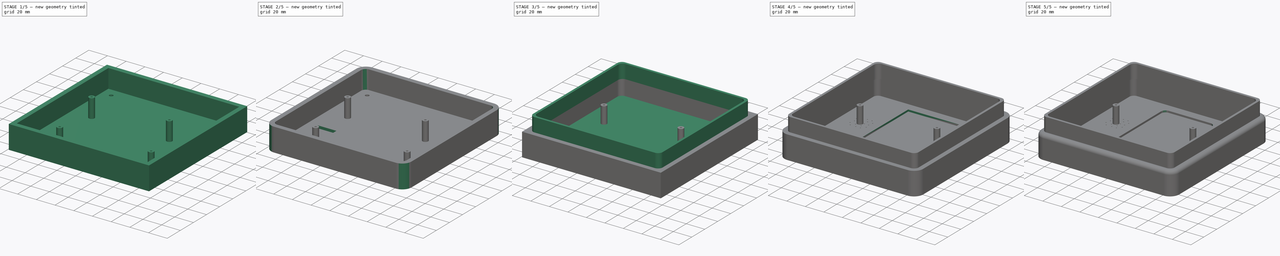
[diagram: build sequence overview — one tinted view per stage of 5, left to right]
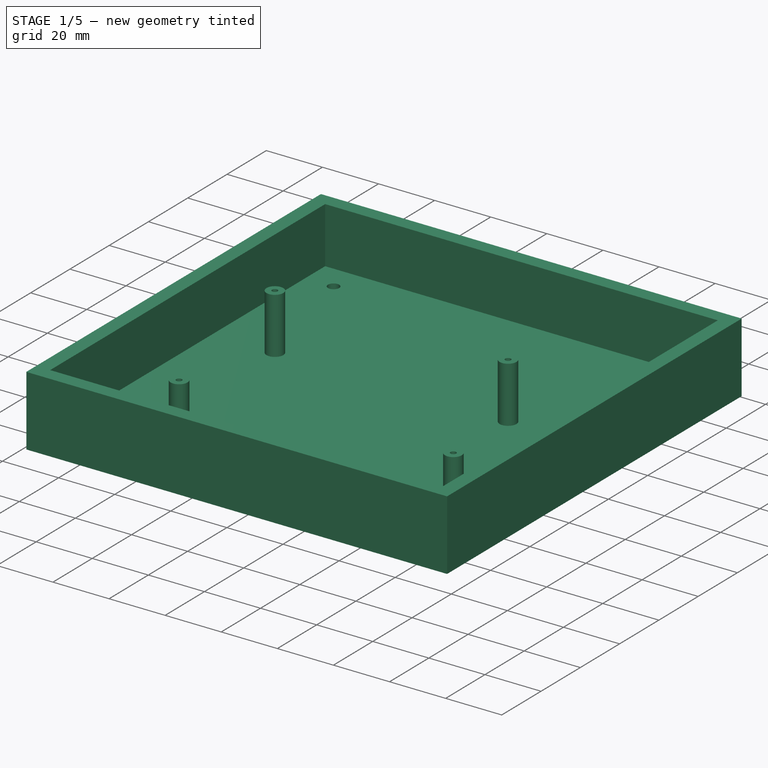
[diagram: stage 1 of 5 — iso view after this stage's code; geometry added in this stage tinted green]
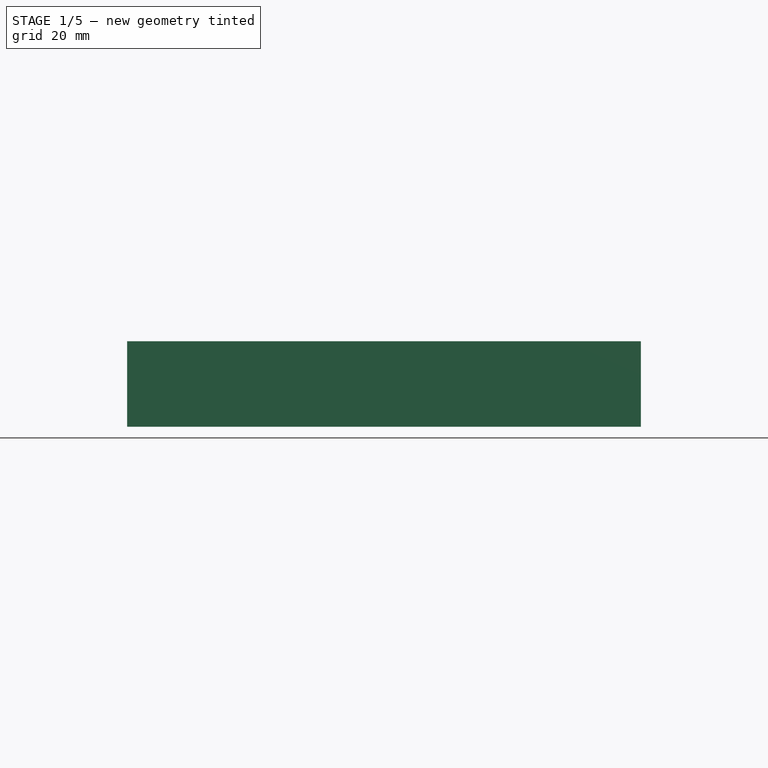
[diagram: stage 1 of 5 — front view after this stage's code; geometry added in this stage tinted green]
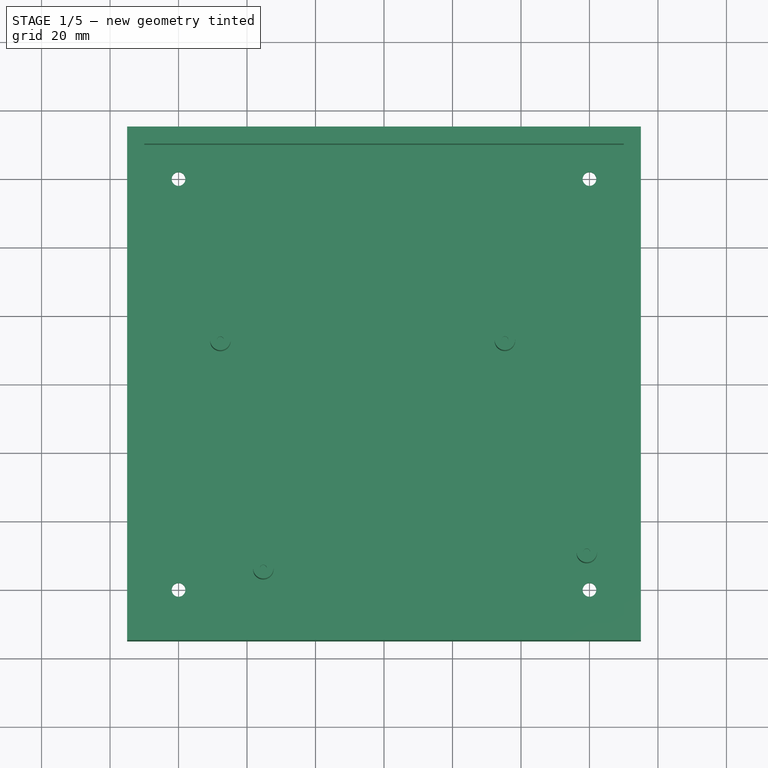
[diagram: stage 1 of 5 — top view after this stage's code; geometry added in this stage tinted green]
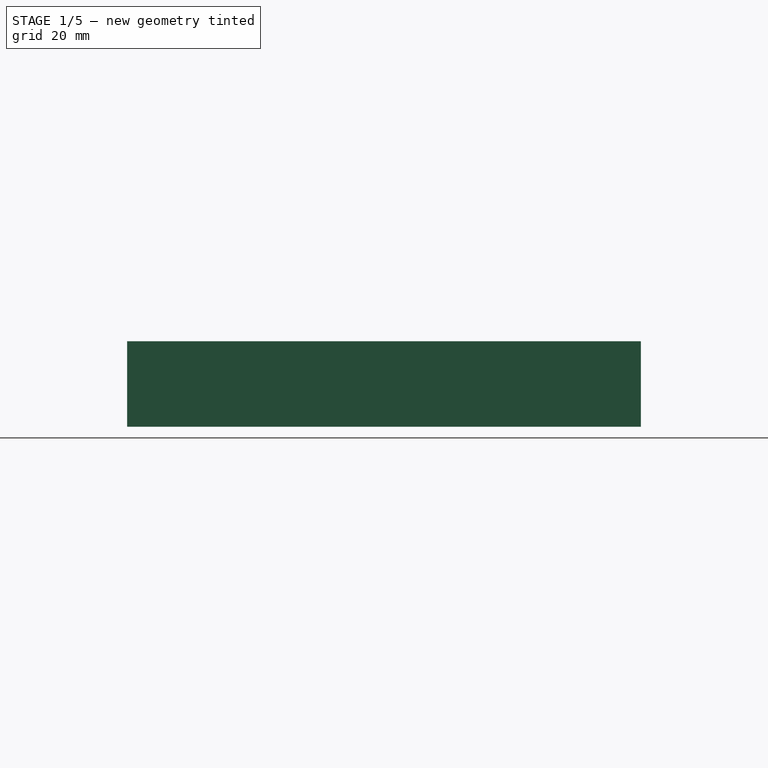
[diagram: stage 1 of 5 — right view after this stage's code; geometry added in this stage tinted green]
FCSTD DOCUMENT  (FreeCAD 2024.2R37240 (Git))
Label: 3d model
License: All rights reserved
LicenseURL: https://en.wikipedia.org/wiki/All_rights_reserved
objects: PartDesign::Fillet×11, Sketcher::SketchObject×10, PartDesign::Pocket×6, PartDesign::Pad×3, PartDesign::Body×2, App::VRMLObject×1, PartDesign::Hole×1
note: 54 computed .brp shape members not serialized (recipe doc carries the construction recipe); baked Part::Feature solids carry a one-line shape summary decoded from their .brp

FEATURE [App::VRMLObject] smart_lock  label="smart lock"
FEATURE [Sketcher::SketchObject] Sketch
  AttachmentSupport = -> [XY_Plane]
  FullyConstrained = true
  MapMode = 5
  sketch-geometry (4):
    g0: LineSegment StartX=-75 StartY=75 StartZ=0 EndX=-75 EndY=-75 EndZ=0
    g1: LineSegment StartX=-75 StartY=-75 StartZ=0 EndX=75 EndY=-75 EndZ=0
    g2: LineSegment StartX=75 StartY=-75 StartZ=0 EndX=75 EndY=75 EndZ=0
    g3: LineSegment StartX=75 StartY=75 StartZ=0 EndX=-75 EndY=75 EndZ=0
  constraints (13):
    c: Coincident(g0,g1)
    c: Coincident(g1,g2)
    c: Coincident(g2,g3)
    c: Coincident(g3,g0)
    c: Vertical(g0)
    c: Vertical(g2)
    c: Horizontal(g1)
    c: Horizontal(g3)
    c: Distance(g0,g2) = 150
    c: Distance(g1,g3) = 150
    c: DistanceY(g-1,g2) = 75
    c: Distance(g-1,g-1) = 0
    c: DistanceX(g-1,g1) = 75
FEATURE [PartDesign::Pad] Pad
  Direction = (0,0,1)
  Length = 25
  Length2 = 10
  Profile = -> Sketch
  ReferenceAxis = -> Sketch [N_Axis]
  Refine = true
  Reversed = true
  Suppressed = false
  Type = 0
FEATURE [Sketcher::SketchObject] Sketch003
  AttachmentSupport = -> [XY_Plane]
  FullyConstrained = false
  MapMode = 5
  sketch-geometry (4):
    g0: Circle CenterX=-47.7799 CenterY=12.6774 CenterZ=0 NormalX=0 NormalY=0 NormalZ=1 AngleXU=0 Radius=1
    g1: Circle CenterX=35.3114 CenterY=12.7213 CenterZ=0 NormalX=0 NormalY=0 NormalZ=1 AngleXU=0 Radius=1
    g2: Circle CenterX=59.2229 CenterY=-49.2691 CenterZ=0 NormalX=0 NormalY=0 NormalZ=1 AngleXU=0 Radius=1
    g3: Circle CenterX=-35.2486 CenterY=-54 CenterZ=0 NormalX=0 NormalY=0 NormalZ=1 AngleXU=0 Radius=1
  constraints (4):
    c: Radius(g0) = 1
    c: Radius(g1) = 1
    c: Radius(g2) = 1
    c: Radius(g3) = 1
FEATURE [PartDesign::Pocket] Pocket001
  BaseFeature = -> Pad
  Direction = (0,0,-1)
  Length = 5
  Length2 = 5
  Profile = -> Sketch003
  ReferenceAxis = -> Sketch003 [N_Axis]
  Refine = true
  Suppressed = false
  Type = 0
FEATURE [Sketcher::SketchObject] Sketch004
  AttachmentSupport = -> [XY_Plane]
  FullyConstrained = false
  MapMode = 5
  sketch-geometry (4):
    g0: Circle CenterX=60 CenterY=-60 CenterZ=0 NormalX=0 NormalY=0 NormalZ=1 AngleXU=0 Radius=2.5
    g1: Circle CenterX=-60 CenterY=60 CenterZ=0 NormalX=0 NormalY=0 NormalZ=1 AngleXU=0 Radius=2.5
    g2: Circle CenterX=-60 CenterY=-60 CenterZ=0 NormalX=0 NormalY=0 NormalZ=1 AngleXU=0 Radius=2.5
    g3: Circle CenterX=60 CenterY=60 CenterZ=0 NormalX=0 NormalY=0 NormalZ=1 AngleXU=0 Radius=2.5
  constraints (4):
    c: Radius(g0) = 2.5
    c: Radius(g1) = 2.5
    c: Radius(g2) = 2.5
    c: Radius(g3) = 2.5
FEATURE [PartDesign::Hole] Hole
  BaseFeature = -> Pocket001
  CustomThreadClearance = 0
  Depth = 25
  DepthType = 0
  Diameter = 4
  DrillForDepth = false
  DrillPoint = 1
  DrillPointAngle = 118
  HoleCutCountersinkAngle = 90
  HoleCutCustomValues = false
  HoleCutDepth = 0
  HoleCutDiameter = 6.1
  HoleCutType = 0
  ModelThread = false
  Profile = -> Sketch004
  Refine = true
  Suppressed = false
  Tapered = false
  TaperedAngle = 90
  ThreadClass = 0
  ThreadDepth = 25
  ThreadDepthType = 0
  ThreadDirection = 0
  ThreadFit = 0
  ThreadSize = 0
  ThreadType = 0
  Threaded = false
  UseCustomThreadClearance = false
FEATURE [Sketcher::SketchObject] Sketch005
  AttachmentSupport = -> [Hole]
  FullyConstrained = false
  MapMode = 5
  Placement = pos=(0,0,-5) rot=(0,0,1;0rad)
  sketch-geometry (4):
    g0: LineSegment StartX=-60 StartY=-15.5439 StartZ=0 EndX=-60 EndY=-20.5439 EndZ=0
    g1: LineSegment StartX=-60 StartY=-20.5439 StartZ=0 EndX=-40 EndY=-20.5439 EndZ=0
    g2: LineSegment StartX=-40 StartY=-20.5439 StartZ=0 EndX=-40 EndY=-15.5439 EndZ=0
    g3: LineSegment StartX=-40 StartY=-15.5439 StartZ=0 EndX=-60 EndY=-15.5439 EndZ=0
  constraints (10):
    c: Coincident(g0,g1)
    c: Coincident(g1,g2)
    c: Coincident(g2,g3)
    c: Coincident(g3,g0)
    c: Vertical(g0)
    c: Vertical(g2)
    c: Horizontal(g1)
    c: Horizontal(g3)
    c: Distance(g0,g2) = 20
    c: Distance(g1,g3) = 5
FEATURE [Sketcher::SketchObject] Sketch001
  AttachmentSupport = -> [XY_Plane]
  ExternalGeometry = -> [Pad]
  FullyConstrained = false
  MapMode = 5
  sketch-geometry (8):
    g0: LineSegment StartX=-70 StartY=70 StartZ=0 EndX=-70 EndY=-70 EndZ=0
    g1: LineSegment StartX=-70 StartY=-70 StartZ=0 EndX=70 EndY=-70 EndZ=0
    g2: LineSegment StartX=70 StartY=-70 StartZ=0 EndX=70 EndY=70 EndZ=0
    g3: LineSegment StartX=70 StartY=70 StartZ=0 EndX=-70 EndY=70 EndZ=0
    g4: Circle CenterX=-47.7799 CenterY=12.6774 CenterZ=0 NormalX=0 NormalY=0 NormalZ=1 AngleXU=0 Radius=3
    g5: Circle CenterX=35.3114 CenterY=12.7213 CenterZ=0 NormalX=0 NormalY=0 NormalZ=1 AngleXU=0 Radius=3
    g6: Circle CenterX=59.2229 CenterY=-49.2691 CenterZ=0 NormalX=0 NormalY=0 NormalZ=1 AngleXU=0 Radius=3
    g7: Circle CenterX=-35.2486 CenterY=-54 CenterZ=0 NormalX=0 NormalY=0 NormalZ=1 AngleXU=0 Radius=3
  constraints (16):
    c: Coincident(g0,g1)
    c: Coincident(g1,g2)
    c: Coincident(g2,g3)
    c: Coincident(g3,g0)
    c: Vertical(g0)
    c: Vertical(g2)
    c: Horizontal(g1)
    c: Horizontal(g3)
    c: Distance(g0,g2) = 140
    c: Distance(g1,g3) = 140
    c: DistanceY(g2,g-3) = 5
    c: DistanceX(g-4,g0) = 5
    c: Radius(g4) = 3
    c: Radius(g5) = 3
    c: Radius(g6) = 3
    c: Radius(g7) = 3
FEATURE [PartDesign::Pocket] Pocket
  BaseFeature = -> Hole
  Direction = (0,0,-1)
  Length = 20
  Length2 = 5
  Profile = -> Sketch001
  ReferenceAxis = -> Sketch001 [N_Axis]
  Refine = true
  Suppressed = false
  Type = 0
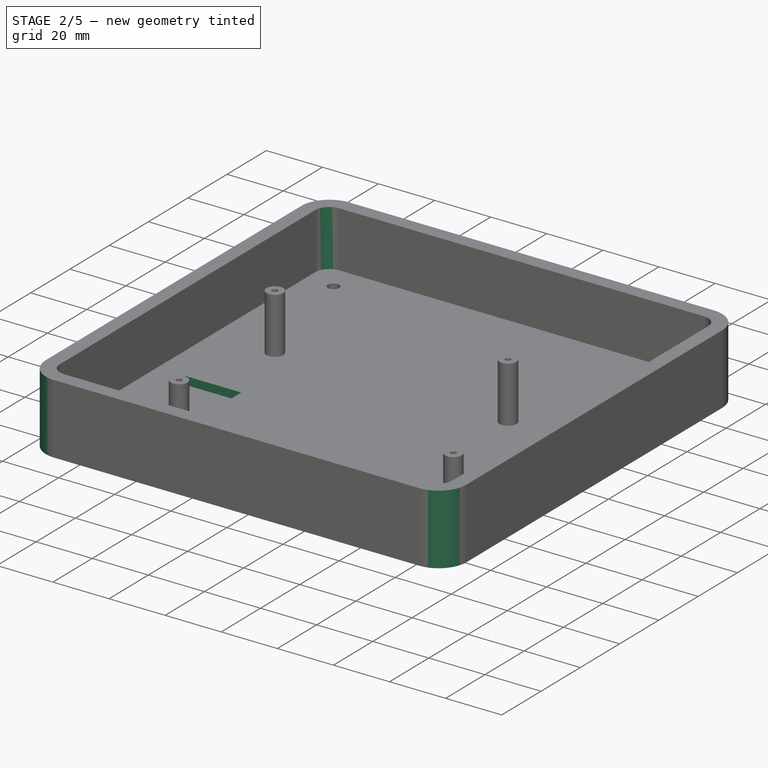
[diagram: stage 2 of 5 — iso view after this stage's code; geometry added in this stage tinted green]
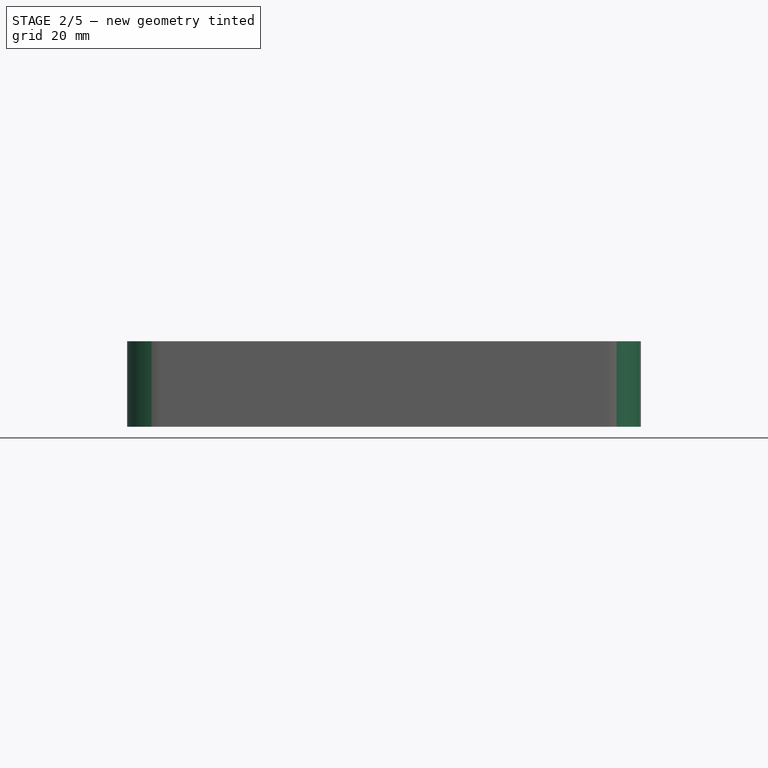
[diagram: stage 2 of 5 — front view after this stage's code; geometry added in this stage tinted green]
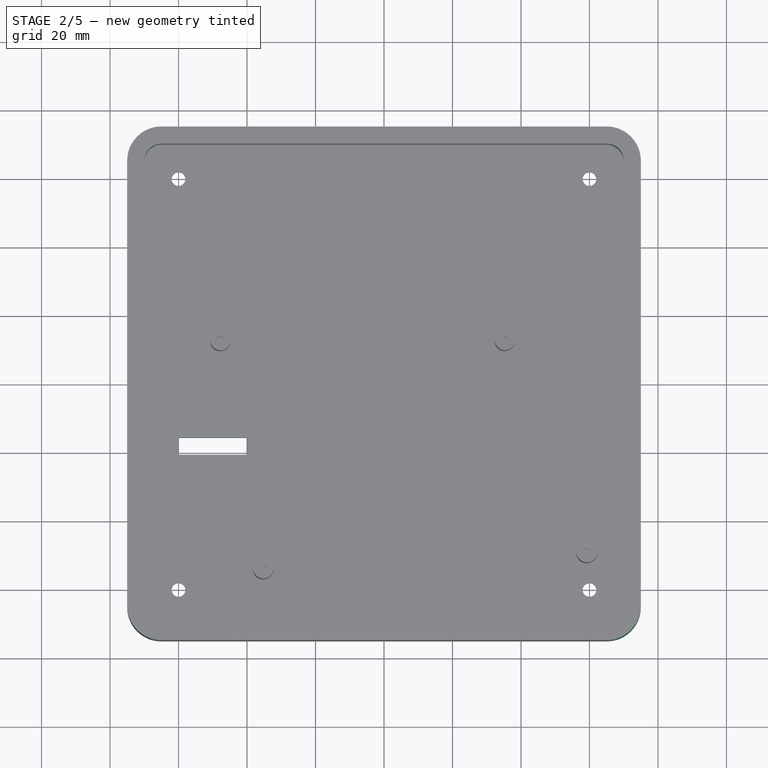
[diagram: stage 2 of 5 — top view after this stage's code; geometry added in this stage tinted green]
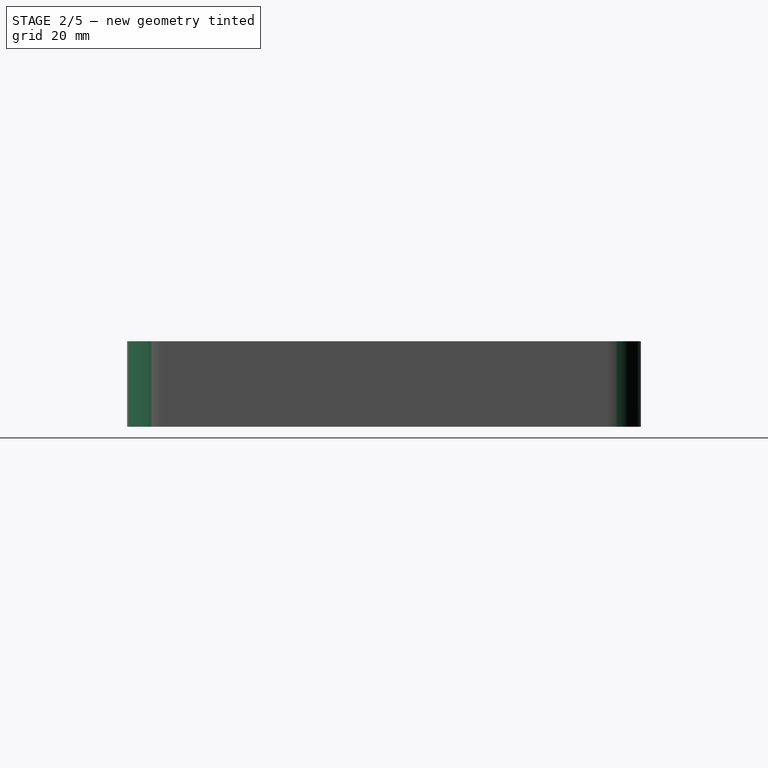
[diagram: stage 2 of 5 — right view after this stage's code; geometry added in this stage tinted green]
FEATURE [PartDesign::Pocket] Pocket005
  BaseFeature = -> Pocket
  Direction = (0,0,-1)
  Length = 22
  Length2 = 5
  Profile = -> Sketch005
  ReferenceAxis = -> Sketch005 [N_Axis]
  Refine = true
  Suppressed = false
  Type = 0
FEATURE [PartDesign::Fillet] Fillet
  Base = -> Pocket005 [Edge30,Edge25,Edge28]
  BaseFeature = -> Pocket005
  Radius = 5
  Refine = true
  SupportTransform = false
  Suppressed = false
  UseAllEdges = false
FEATURE [PartDesign::Fillet] Fillet011
  Base = -> Fillet [Edge29,Edge26,Edge31,Edge27]
  BaseFeature = -> Fillet
  Radius = 10
  Refine = true
  SupportTransform = false
  Suppressed = false
  UseAllEdges = false
FEATURE [PartDesign::Fillet] Fillet012
  Base = -> Fillet011 [Edge33]
  BaseFeature = -> Fillet011
  Radius = 5
  Refine = true
  SupportTransform = false
  Suppressed = false
  UseAllEdges = false
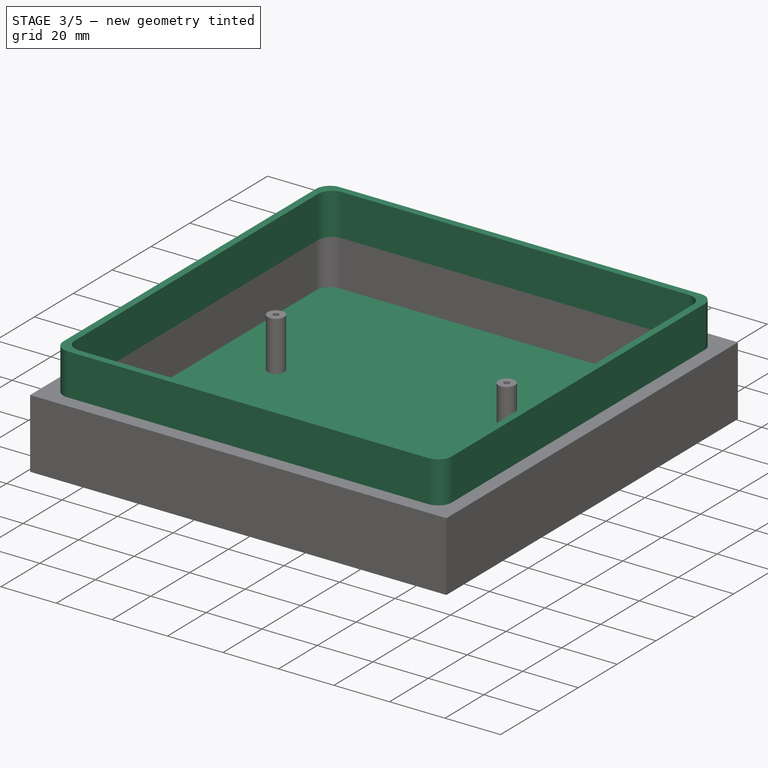
[diagram: stage 3 of 5 — iso view after this stage's code; geometry added in this stage tinted green]
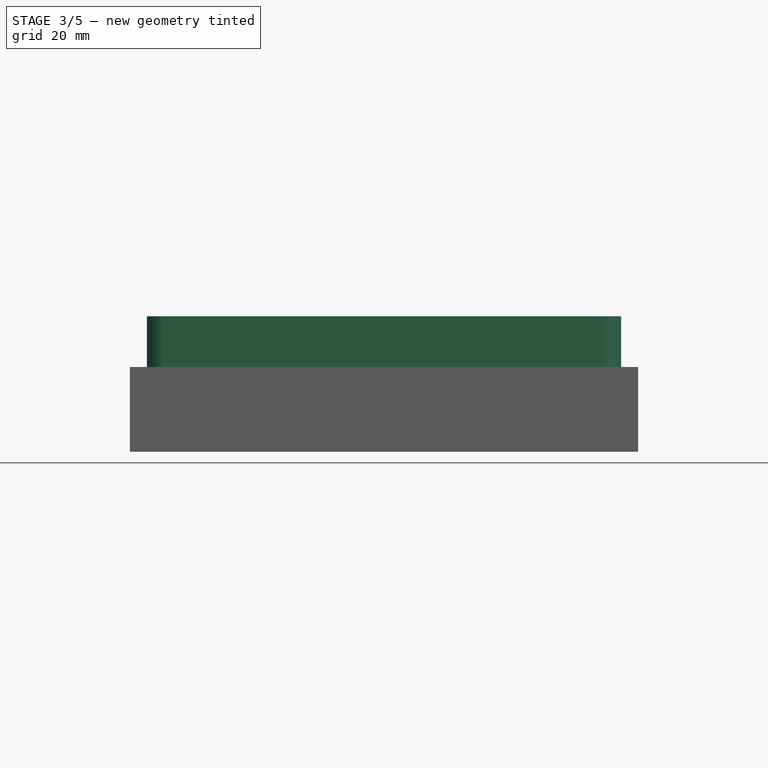
[diagram: stage 3 of 5 — front view after this stage's code; geometry added in this stage tinted green]
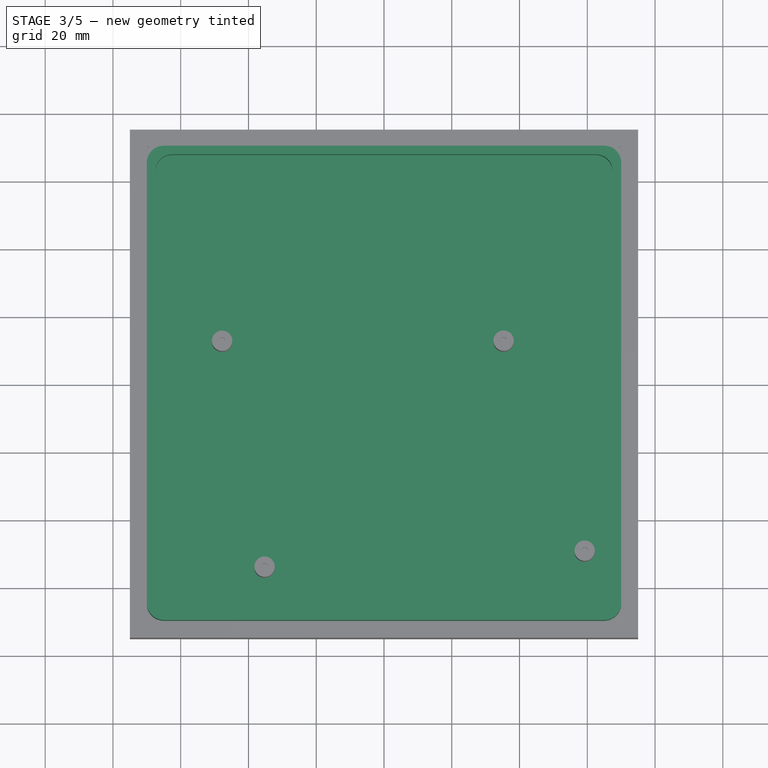
[diagram: stage 3 of 5 — top view after this stage's code; geometry added in this stage tinted green]
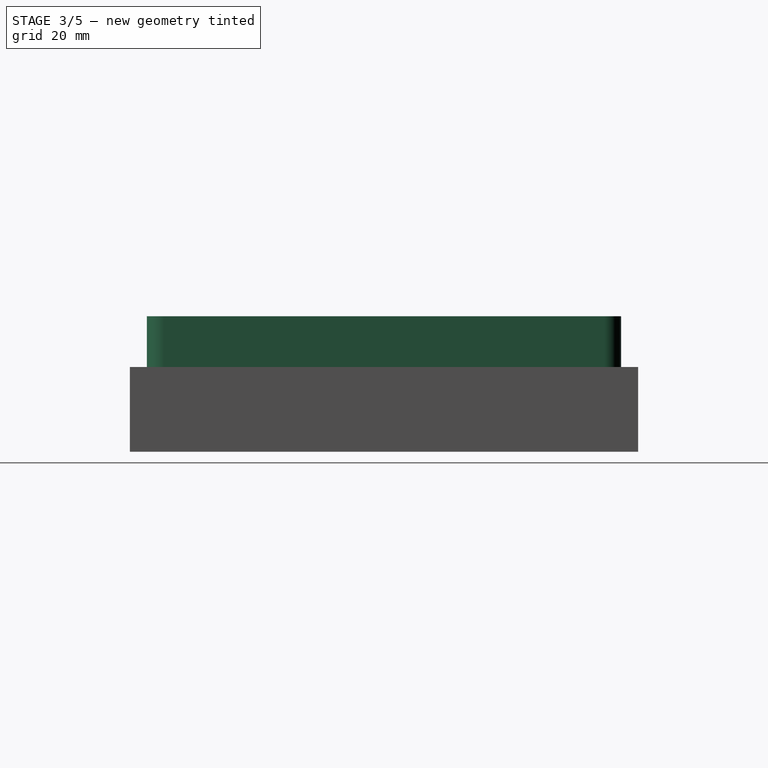
[diagram: stage 3 of 5 — right view after this stage's code; geometry added in this stage tinted green]
FEATURE [Sketcher::SketchObject] Sketch002
  AttachmentSupport = -> [XY_Plane001]
  FullyConstrained = true
  MapMode = 5
  sketch-geometry (4):
    g0: LineSegment StartX=-75 StartY=75 StartZ=0 EndX=-75 EndY=-75 EndZ=0
    g1: LineSegment StartX=-75 StartY=-75 StartZ=0 EndX=75 EndY=-75 EndZ=0
    g2: LineSegment StartX=75 StartY=-75 StartZ=0 EndX=75 EndY=75 EndZ=0
    g3: LineSegment StartX=75 StartY=75 StartZ=0 EndX=-75 EndY=75 EndZ=0
  constraints (13):
    c: Coincident(g0,g1)
    c: Coincident(g1,g2)
    c: Coincident(g2,g3)
    c: Coincident(g3,g0)
    c: Vertical(g0)
    c: Vertical(g2)
    c: Horizontal(g1)
    c: Horizontal(g3)
    c: Distance(g0,g2) = 150
    c: Distance(g1,g3) = 150
    c: DistanceY(g-1,g2) = 75
    c: Distance(g-1,g-1) = 0
    c: DistanceX(g-1,g1) = 75
FEATURE [PartDesign::Pad] Pad001
  Direction = (0,0,1)
  Length = 25
  Length2 = 10
  Profile = -> Sketch002
  ReferenceAxis = -> Sketch002 [N_Axis]
  Refine = true
  Reversed = true
  Suppressed = false
  Type = 0
FEATURE [Sketcher::SketchObject] Sketch006
  AttachmentSupport = -> [XY_Plane001]
  ExternalGeometry = -> [Pad001]
  FullyConstrained = true
  MapMode = 5
  sketch-geometry (4):
    g0: LineSegment StartX=-70 StartY=70 StartZ=0 EndX=-70 EndY=-70 EndZ=0
    g1: LineSegment StartX=-70 StartY=-70 StartZ=0 EndX=70 EndY=-70 EndZ=0
    g2: LineSegment StartX=70 StartY=-70 StartZ=0 EndX=70 EndY=70 EndZ=0
    g3: LineSegment StartX=70 StartY=70 StartZ=0 EndX=-70 EndY=70 EndZ=0
  constraints (12):
    c: Coincident(g0,g1)
    c: Coincident(g1,g2)
    c: Coincident(g2,g3)
    c: Coincident(g3,g0)
    c: Vertical(g0)
    c: Vertical(g2)
    c: Horizontal(g1)
    c: Horizontal(g3)
    c: Distance(g0,g2) = 140
    c: Distance(g1,g3) = 140
    c: DistanceY(g2,g-3) = 5
    c: DistanceX(g-4,g0) = 5
FEATURE [PartDesign::Pocket] Pocket003
  BaseFeature = -> Pad001
  Direction = (0,0,-1)
  Length = 18
  Length2 = 5
  Profile = -> Sketch006
  ReferenceAxis = -> Sketch006 [N_Axis]
  Refine = true
  Suppressed = false
  Type = 0
FEATURE [PartDesign::Fillet] Fillet013
  Base = -> Fillet012 [Edge9]
  BaseFeature = -> Fillet012
  Radius = 4
  Refine = true
  SupportTransform = false
  Suppressed = false
  UseAllEdges = false
FEATURE [PartDesign::Body] Body001
  Group = -> [Sketch002,Pad001,Sketch006,Pocket003,Sketch007,Pocket004,Fillet005,Fillet006,Fillet007,Fillet008,Fillet009,Fillet010,Fillet014]
  Origin = -> Origin001
  Placement = pos=(0,1e-15,-11) rot=(1,0,0;3.14159rad)
  Tip = -> Fillet014
FEATURE [Sketcher::SketchObject] Sketch008
  AttachmentSupport = -> [XY_Plane]
  FullyConstrained = false
  MapMode = 5
  sketch-geometry (10):
    g0: LineSegment StartX=-70 StartY=65 StartZ=0 EndX=-70 EndY=-65 EndZ=0
    g1: LineSegment StartX=-65 StartY=-70 StartZ=0 EndX=65 EndY=-70 EndZ=0
    g2: LineSegment StartX=70 StartY=-65 StartZ=0 EndX=70 EndY=65 EndZ=0
    g3: LineSegment StartX=65 StartY=70 StartZ=0 EndX=-65 EndY=70 EndZ=0
    g4: ArcOfCircle CenterX=-65 CenterY=65 CenterZ=0 NormalX=0 NormalY=0 NormalZ=1 AngleXU=0 Radius=5 StartAngle=1.5708 EndAngle=3.14159
    g5: ArcOfCircle CenterX=-65 CenterY=-65 CenterZ=0 NormalX=0 NormalY=0 NormalZ=1 AngleXU=0 Radius=5 StartAngle=3.14159 EndAngle=4.71239
    g6: ArcOfCircle CenterX=65 CenterY=-65 CenterZ=0 NormalX=0 NormalY=0 NormalZ=1 AngleXU=0 Radius=5 StartAngle=4.71239 EndAngle=6.28319
    g7: ArcOfCircle CenterX=65 CenterY=65 CenterZ=0 NormalX=0 NormalY=0 NormalZ=1 AngleXU=0 Radius=5 StartAngle=0 EndAngle=1.5708
    g8: GeomPoint X=-70 Y=70 Z=0
    g9: GeomPoint X=70 Y=-70 Z=0
  constraints (22):
    c: Tangent(g0,g4) = -1.5708
    c: Tangent(g0,g5) = -1.5708
    c: Tangent(g1,g5) = -1.5708
    c: Tangent(g1,g6) = -1.5708
    c: Tangent(g2,g6) = -1.5708
    c: Tangent(g2,g7) = -1.5708
    c: Tangent(g3,g7) = -1.5708
    c: Tangent(g3,g4) = -1.5708
    c: Vertical(g0)
    c: Vertical(g2)
    c: Horizontal(g1)
    c: Horizontal(g3)
    c: Equal(g4,g5)
    c: Equal(g5,g6)
    c: Equal(g6,g7)
    c: PointOnObject(g8,g0)
    c: PointOnObject(g8,g3)
    c: PointOnObject(g9,g1)
    c: PointOnObject(g9,g2)
    c: Distance(g0,g2) = 140
    c: Distance(g1,g3) = 140
    c: Radius(g5) = 5
FEATURE [PartDesign::Pad] Pad002
  BaseFeature = -> Fillet013
  Direction = (0,0,1)
  Length = 15
  Length2 = 10
  Profile = -> Sketch008
  ReferenceAxis = -> Sketch008 [N_Axis]
  Refine = true
  Suppressed = false
  Type = 0
FEATURE [Sketcher::SketchObject] Sketch009
  AttachmentSupport = -> [Pad002]
  FullyConstrained = false
  MapMode = 5
  Placement = pos=(0,0,15) rot=(0,0,1;0rad)
  sketch-geometry (10):
    g0: LineSegment StartX=-67.4986 StartY=62.4757 StartZ=0 EndX=-67.4986 EndY=-62.5243 EndZ=0
    g1: LineSegment StartX=-62.4986 StartY=-67.5243 StartZ=0 EndX=62.5014 EndY=-67.5243 EndZ=0
    g2: LineSegment StartX=67.5014 StartY=-62.5243 StartZ=0 EndX=67.5014 EndY=62.4757 EndZ=0
    g3: LineSegment StartX=62.5014 StartY=67.4757 StartZ=0 EndX=-62.4986 EndY=67.4757 EndZ=0
    g4: ArcOfCircle CenterX=-62.4986 CenterY=62.4757 CenterZ=0 NormalX=0 NormalY=0 NormalZ=1 AngleXU=0 Radius=5 StartAngle=1.5708 EndAngle=3.14159
    g5: ArcOfCircle CenterX=-62.4986 CenterY=-62.5243 CenterZ=0 NormalX=0 NormalY=0 NormalZ=1 AngleXU=0 Radius=5 StartAngle=3.14159 EndAngle=4.71239
    g6: ArcOfCircle CenterX=62.5014 CenterY=-62.5243 CenterZ=0 NormalX=0 NormalY=0 NormalZ=1 AngleXU=0 Radius=5 StartAngle=4.71239 EndAngle=6.28319
    g7: ArcOfCircle CenterX=62.5014 CenterY=62.4757 CenterZ=0 NormalX=0 NormalY=0 NormalZ=1 AngleXU=0 Radius=5 StartAngle=0 EndAngle=1.5708
    g8: GeomPoint X=-67.4986 Y=67.4757 Z=0
    g9: GeomPoint X=67.5014 Y=-67.5243 Z=0
  constraints (22):
    c: Tangent(g0,g4) = -1.5708
    c: Tangent(g0,g5) = -1.5708
    c: Tangent(g1,g5) = -1.5708
    c: Tangent(g1,g6) = -1.5708
    c: Tangent(g2,g6) = -1.5708
    c: Tangent(g2,g7) = -1.5708
    c: Tangent(g3,g7) = -1.5708
    c: Tangent(g3,g4) = -1.5708
    c: Vertical(g0)
    c: Vertical(g2)
    c: Horizontal(g1)
    c: Horizontal(g3)
    c: Equal(g4,g5)
    c: Equal(g5,g6)
    c: Equal(g6,g7)
    c: PointOnObject(g8,g0)
    c: PointOnObject(g8,g3)
    c: PointOnObject(g9,g1)
    c: PointOnObject(g9,g2)
    c: Distance(g0,g2) = 135
    c: Distance(g1,g3) = 135
    c: Radius(g5) = 5
FEATURE [PartDesign::Pocket] Pocket006
  BaseFeature = -> Pad002
  Direction = (0,0,-1)
  Length = 15
  Length2 = 5
  Profile = -> Sketch009
  ReferenceAxis = -> Sketch009 [N_Axis]
  Refine = true
  Suppressed = false
  Type = 0
FEATURE [PartDesign::Body] Body
  Group = -> [Sketch,Pad,Sketch001,Sketch003,Pocket001,Sketch004,Hole,Sketch005,Pocket,Pocket005,Fillet,Fillet011,Fillet012,Fillet013,Sketch008,Pad002,Sketch009,Pocket006]
  Origin = -> Origin
  Placement = pos=(0,0,-20) rot=(0,0,1;0rad)
  Tip = -> Pocket006
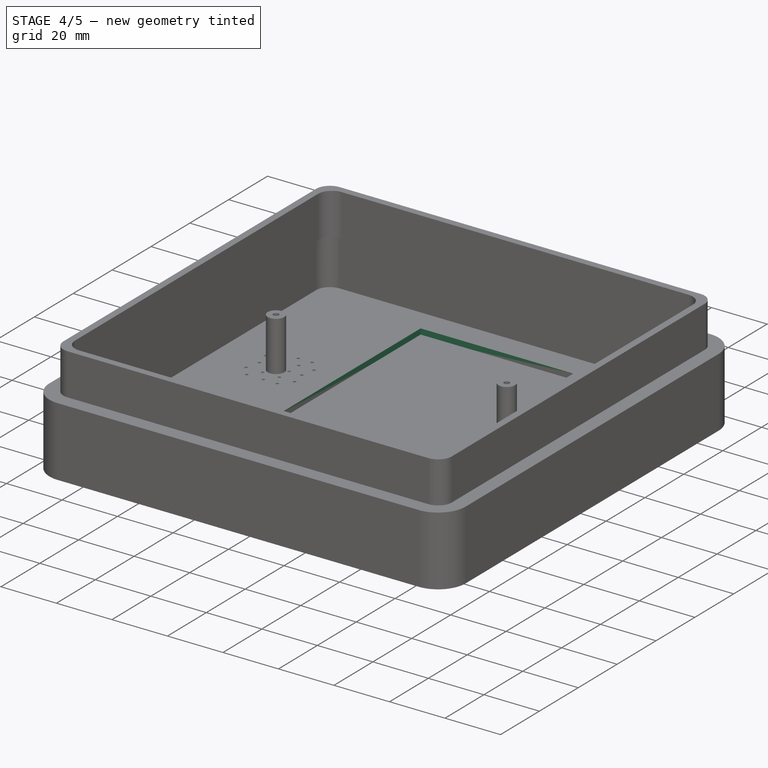
[diagram: stage 4 of 5 — iso view after this stage's code; geometry added in this stage tinted green]
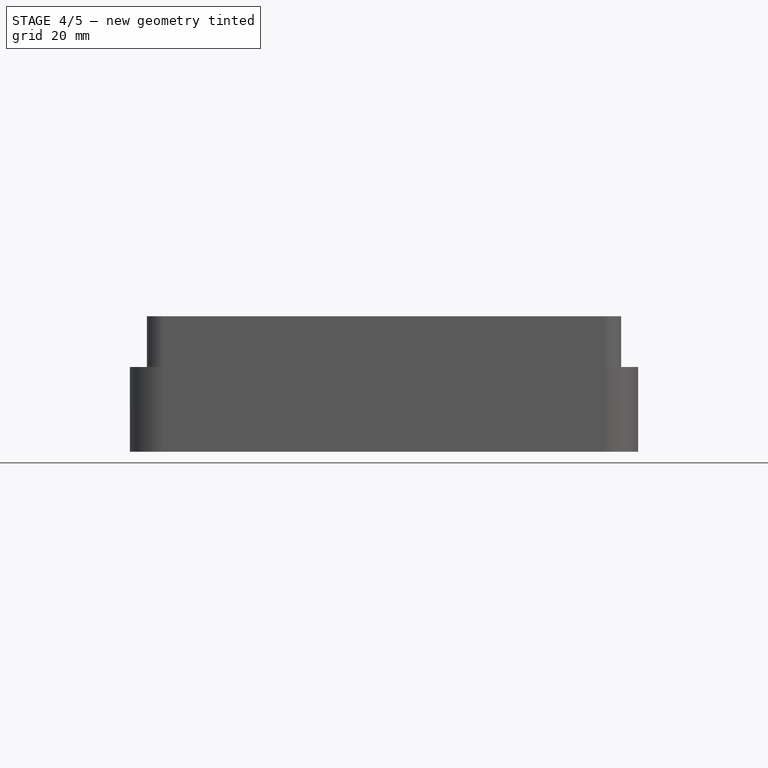
[diagram: stage 4 of 5 — front view after this stage's code; geometry added in this stage tinted green]
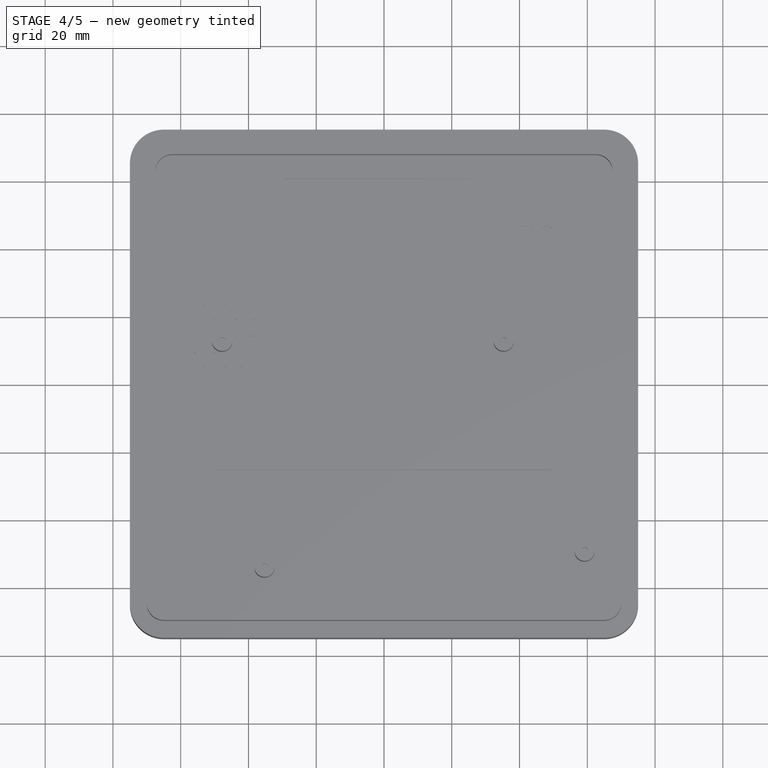
[diagram: stage 4 of 5 — top view after this stage's code; geometry added in this stage tinted green]
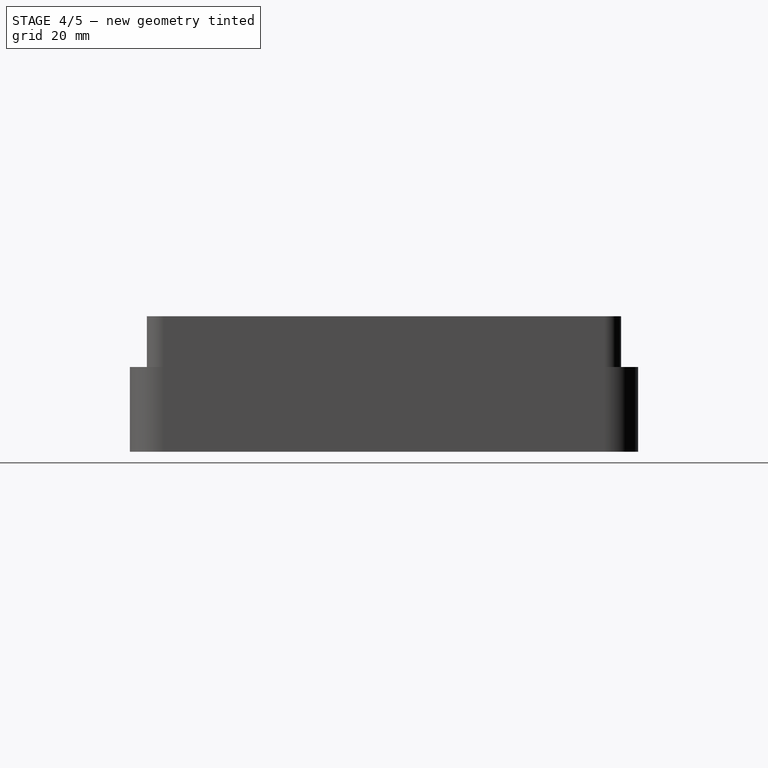
[diagram: stage 4 of 5 — right view after this stage's code; geometry added in this stage tinted green]
FEATURE [Sketcher::SketchObject] Sketch007
  AttachmentSupport = -> [XY_Plane001]
  FullyConstrained = false
  MapMode = 5
  sketch-geometry (28):
    g0: LineSegment StartX=-50.066 StartY=-50 StartZ=0 EndX=49.434 EndY=-50 EndZ=0
    g1: LineSegment StartX=49.434 StartY=-50 StartZ=0 EndX=49.434 EndY=-25 EndZ=0
    g2: LineSegment StartX=49.434 StartY=-25 StartZ=0 EndX=-50.066 EndY=-25 EndZ=0
    g3: LineSegment StartX=-50.066 StartY=-25 StartZ=0 EndX=-50.066 EndY=-50 EndZ=0
    g4: Circle CenterX=47.9816 CenterY=44.2619 CenterZ=0 NormalX=0 NormalY=0 NormalZ=1 AngleXU=0 Radius=2.5
    g5: Circle CenterX=41.5152 CenterY=44.357 CenterZ=0 NormalX=0 NormalY=0 NormalZ=1 AngleXU=0 Radius=2.5
    g6: Circle CenterX=-50 CenterY=14 CenterZ=0 NormalX=0 NormalY=0 NormalZ=1 AngleXU=0 Radius=0.5
    g7: Circle CenterX=-42 CenterY=5 CenterZ=0 NormalX=0 NormalY=0 NormalZ=1 AngleXU=0 Radius=0.5
    g8: Circle CenterX=-47 CenterY=5 CenterZ=0 NormalX=0 NormalY=0 NormalZ=1 AngleXU=0 Radius=0.5
    g9: Circle CenterX=-50 CenterY=19 CenterZ=0 NormalX=0 NormalY=0 NormalZ=1 AngleXU=0 Radius=0.5
    g10: Circle CenterX=-38.5203 CenterY=9 CenterZ=0 NormalX=0 NormalY=0 NormalZ=1 AngleXU=0 Radius=0.5
    g11: Circle CenterX=-44 CenterY=19 CenterZ=0 NormalX=0 NormalY=0 NormalZ=1 AngleXU=0 Radius=0.5
    g12: Circle CenterX=-42 CenterY=23 CenterZ=0 NormalX=0 NormalY=0 NormalZ=1 AngleXU=0 Radius=0.5
    g13: Circle CenterX=-39.4648 CenterY=14 CenterZ=0 NormalX=0 NormalY=0 NormalZ=1 AngleXU=0 Radius=0.5
    g14: Circle CenterX=-56 CenterY=9 CenterZ=0 NormalX=0 NormalY=0 NormalZ=1 AngleXU=0 Radius=0.5
    g15: Circle CenterX=-44 CenterY=14 CenterZ=0 NormalX=0 NormalY=0 NormalZ=1 AngleXU=0 Radius=0.5
    g16: Circle CenterX=-53 CenterY=5 CenterZ=0 NormalX=0 NormalY=0 NormalZ=1 AngleXU=0 Radius=0.5
    g17: Circle CenterX=-38.4854 CenterY=18.8786 CenterZ=0 NormalX=0 NormalY=0 NormalZ=1 AngleXU=0 Radius=0.5
    g18: Circle CenterX=-56 CenterY=19 CenterZ=0 NormalX=0 NormalY=0 NormalZ=1 AngleXU=0 Radius=0.5
    g19: Circle CenterX=-53 CenterY=23 CenterZ=0 NormalX=0 NormalY=0 NormalZ=1 AngleXU=0 Radius=0.5
    g20: Circle CenterX=-47 CenterY=23 CenterZ=0 NormalX=0 NormalY=0 NormalZ=1 AngleXU=0 Radius=0.5
    g21: Circle CenterX=-54.6984 CenterY=14 CenterZ=0 NormalX=0 NormalY=0 NormalZ=1 AngleXU=0 Radius=0.5
    g22: Circle CenterX=-50 CenterY=9 CenterZ=0 NormalX=0 NormalY=0 NormalZ=1 AngleXU=0 Radius=0.5
    g23: Circle CenterX=-44 CenterY=9 CenterZ=0 NormalX=0 NormalY=0 NormalZ=1 AngleXU=0 Radius=0.5
    g24: LineSegment StartX=-29.4014 StartY=-14.1558 StartZ=0 EndX=25.5986 EndY=-14.1558 EndZ=0
    g25: LineSegment StartX=25.5986 StartY=-14.1558 StartZ=0 EndX=25.5986 EndY=60.8442 EndZ=0
    g26: LineSegment StartX=25.5986 StartY=60.8442 StartZ=0 EndX=-29.4014 EndY=60.8442 EndZ=0
    g27: LineSegment StartX=-29.4014 StartY=60.8442 StartZ=0 EndX=-29.4014 EndY=-14.1558 EndZ=0
  constraints (40):
    c: Coincident(g0,g1)
    c: Coincident(g1,g2)
    c: Coincident(g2,g3)
    c: Coincident(g3,g0)
    c: Horizontal(g0)
    c: Horizontal(g2)
    c: Vertical(g1)
    c: Vertical(g3)
    c: Distance(g1,g3) = 99.5
    c: Distance(g0,g2) = 25
    c: Radius(g4) = 2.5
    c: Radius(g5) = 2.5
    c: Radius(g6) = 0.5
    c: Radius(g7) = 0.5
    c: Radius(g8) = 0.5
    c: Radius(g9) = 0.5
    c: Radius(g10) = 0.5
    c: Radius(g11) = 0.5
    c: Radius(g12) = 0.5
    c: Radius(g13) = 0.5
    c: Radius(g14) = 0.5
    c: Radius(g15) = 0.5
    c: Radius(g16) = 0.5
    c: Radius(g17) = 0.5
    c: Radius(g18) = 0.5
    c: Radius(g19) = 0.5
    c: Radius(g20) = 0.5
    c: Radius(g21) = 0.5
    c: Radius(g22) = 0.5
    c: Radius(g23) = 0.5
    c: Coincident(g24,g25)
    c: Coincident(g25,g26)
    c: Coincident(g26,g27)
    c: Coincident(g27,g24)
    c: Horizontal(g24)
    c: Horizontal(g26)
    c: Vertical(g25)
    c: Vertical(g27)
    c: Distance(g25,g27) = 55
    c: Distance(g24,g26) = 75
FEATURE [PartDesign::Pocket] Pocket004
  BaseFeature = -> Pocket003
  Direction = (0,0,-1)
  Length = 33
  Length2 = 5
  Profile = -> Sketch007
  ReferenceAxis = -> Sketch007 [N_Axis]
  Refine = true
  Suppressed = false
  Type = 0
FEATURE [PartDesign::Fillet] Fillet005
  Base = -> Pocket004 [Edge2,Edge1,Edge5,Edge8]
  BaseFeature = -> Pocket004
  Radius = 10
  Refine = true
  SupportTransform = false
  Suppressed = false
  UseAllEdges = false
FEATURE [PartDesign::Fillet] Fillet006
  Base = -> Fillet005 [Edge30,Edge31,Edge28,Edge29,Edge47,Edge50,Edge48,Edge49]
  BaseFeature = -> Fillet005
  Radius = 4
  Refine = true
  SupportTransform = false
  Suppressed = false
  UseAllEdges = false
FEATURE [PartDesign::Fillet] Fillet007
  Base = -> Fillet006 [Edge136,Edge134,Edge133]
  BaseFeature = -> Fillet006
  Radius = 5
  Refine = true
  SupportTransform = false
  Suppressed = false
  UseAllEdges = false
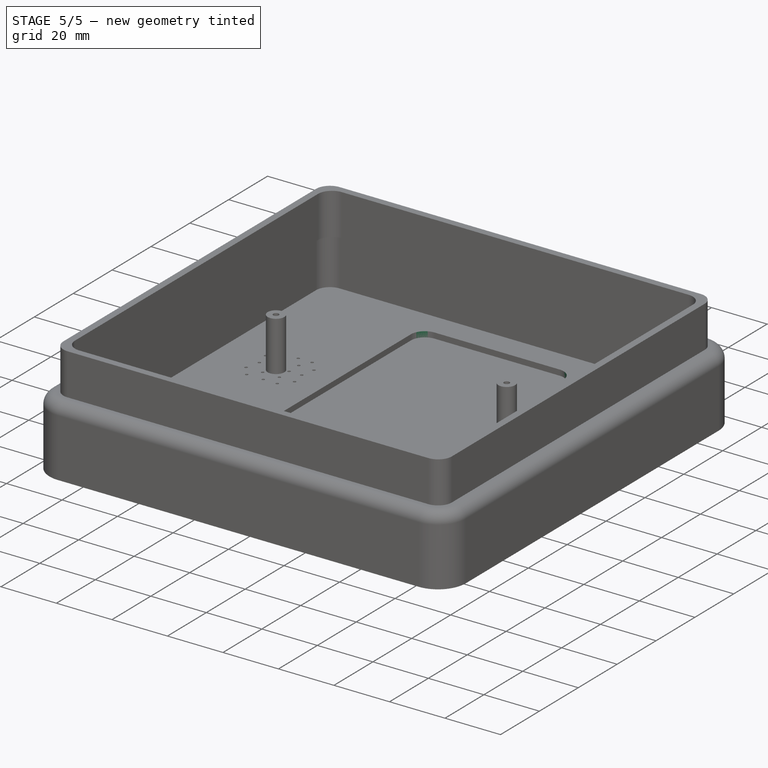
[diagram: stage 5 of 5 — iso view after this stage's code; geometry added in this stage tinted green]
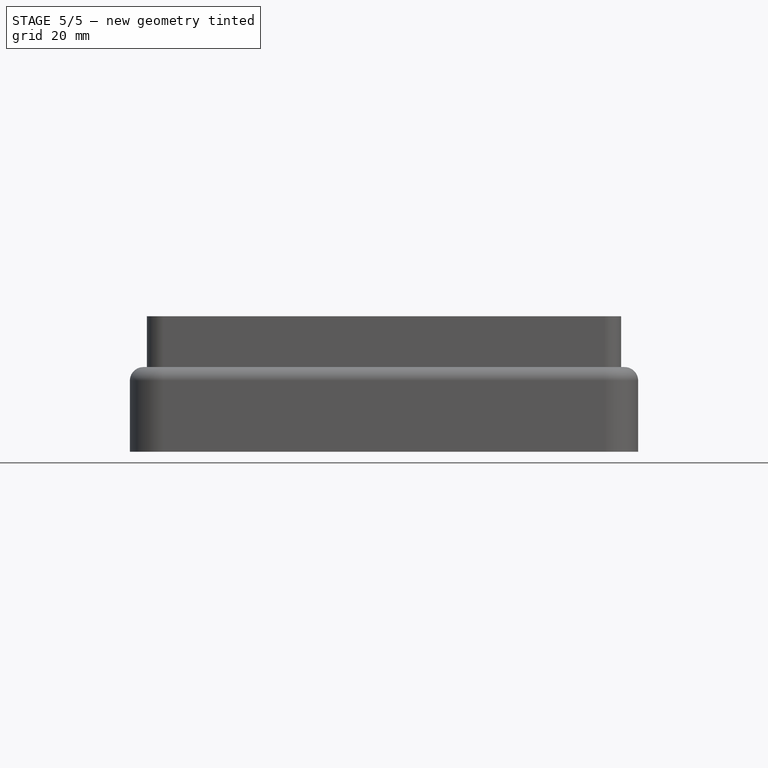
[diagram: stage 5 of 5 — front view after this stage's code; geometry added in this stage tinted green]
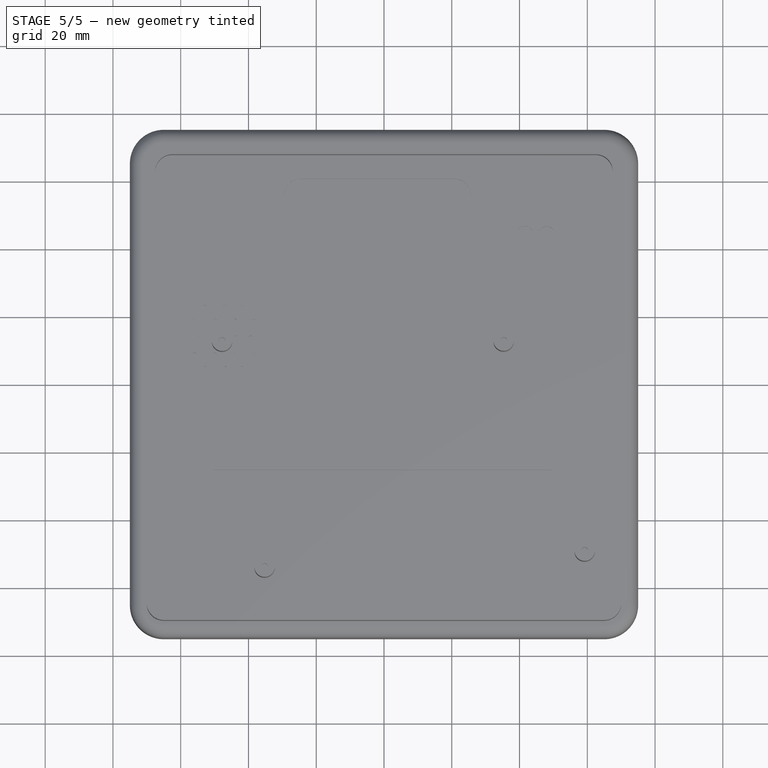
[diagram: stage 5 of 5 — top view after this stage's code; geometry added in this stage tinted green]
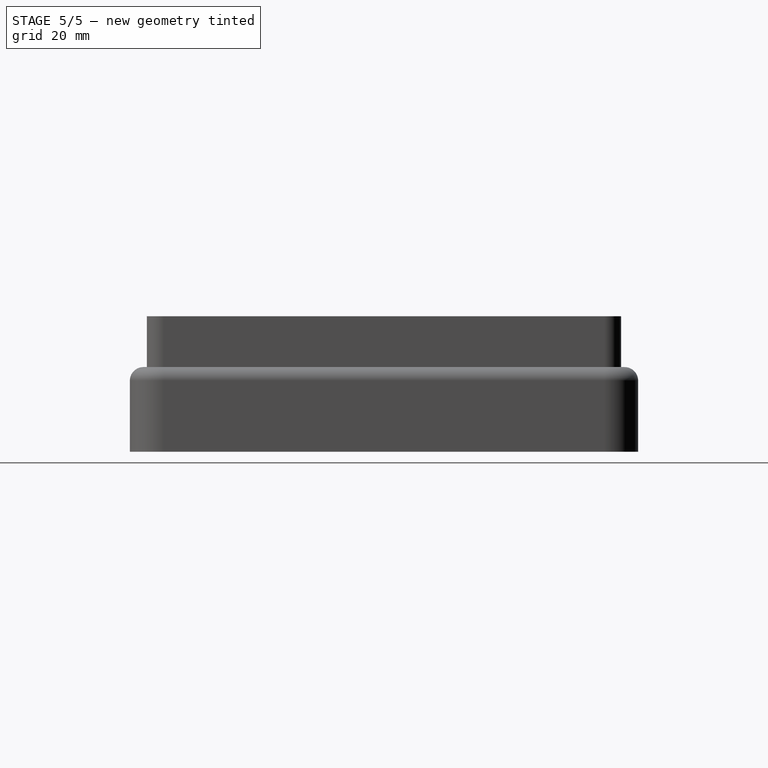
[diagram: stage 5 of 5 — right view after this stage's code; geometry added in this stage tinted green]
FEATURE [PartDesign::Fillet] Fillet008
  Base = -> Fillet007 [Edge25]
  BaseFeature = -> Fillet007
  Radius = 5
  Refine = true
  SupportTransform = false
  Suppressed = false
  UseAllEdges = false
FEATURE [PartDesign::Fillet] Fillet009
  Base = -> Fillet008 [Edge13]
  BaseFeature = -> Fillet008
  Radius = 4
  Refine = true
  SupportTransform = false
  Suppressed = false
  UseAllEdges = false
FEATURE [PartDesign::Fillet] Fillet010
  Base = -> Fillet009 [Edge162,Edge161,Edge163,Edge164]
  BaseFeature = -> Fillet009
  Radius = 5
  Refine = true
  SupportTransform = false
  Suppressed = false
  UseAllEdges = false
FEATURE [PartDesign::Fillet] Fillet014
  Base = -> Fillet010 [Edge153]
  BaseFeature = -> Fillet010
  Radius = 4
  Refine = true
  SupportTransform = false
  Suppressed = false
  UseAllEdges = false
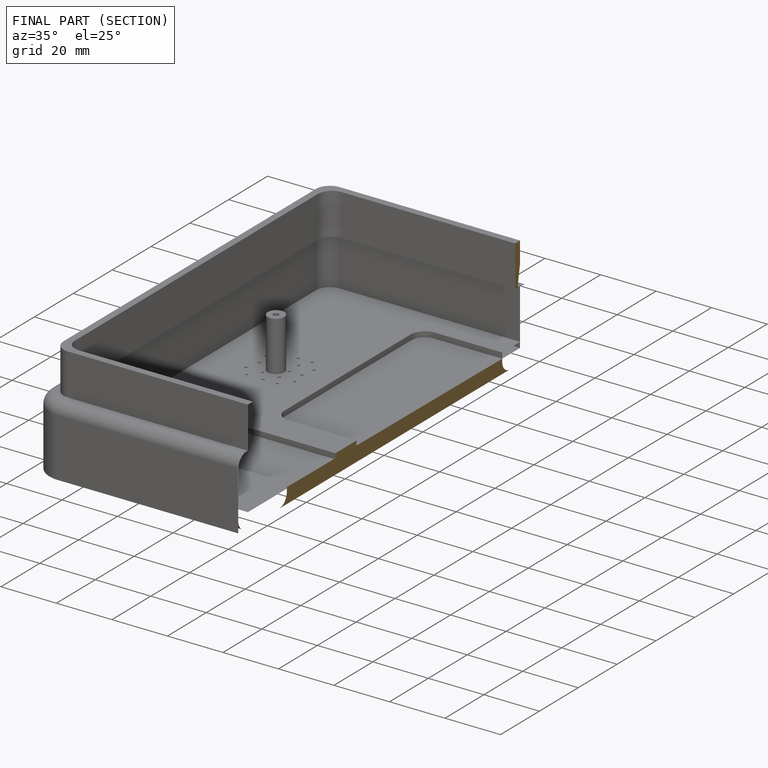
[diagram: finished part — half-section view (interior)]
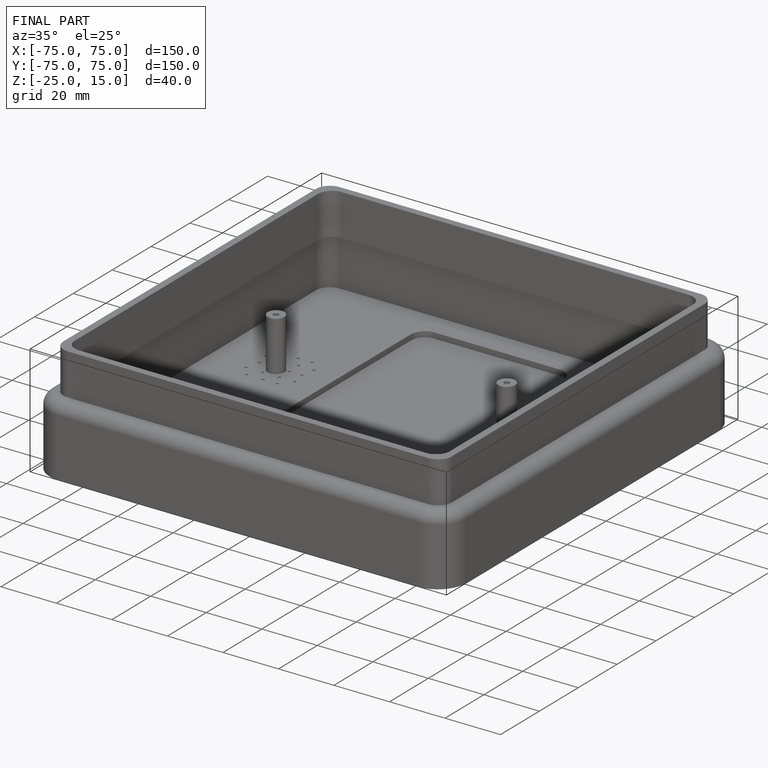
[diagram: finished part — iso view with bounding-box wireframe]
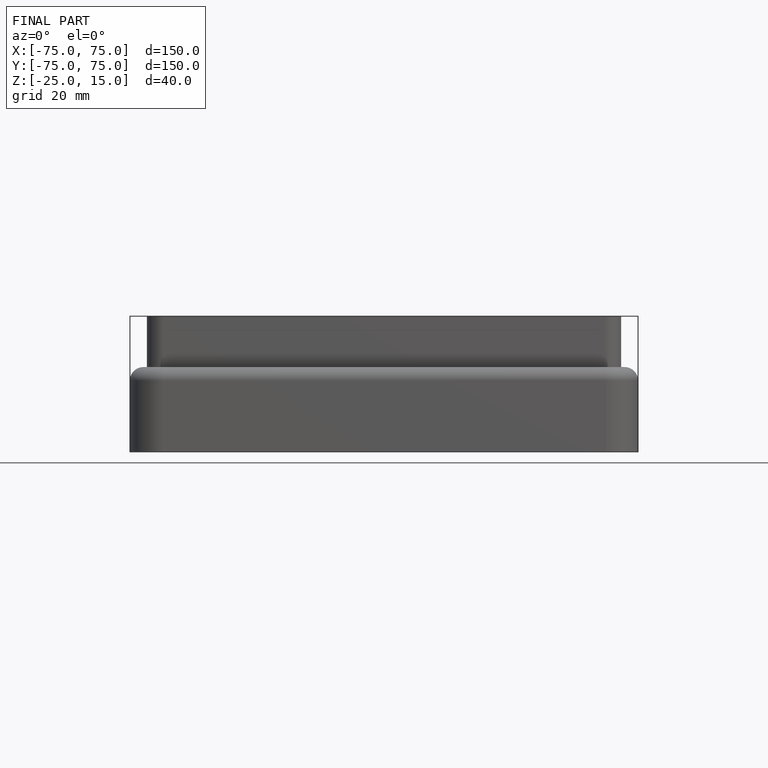
[diagram: finished part — front view with bounding-box wireframe]
